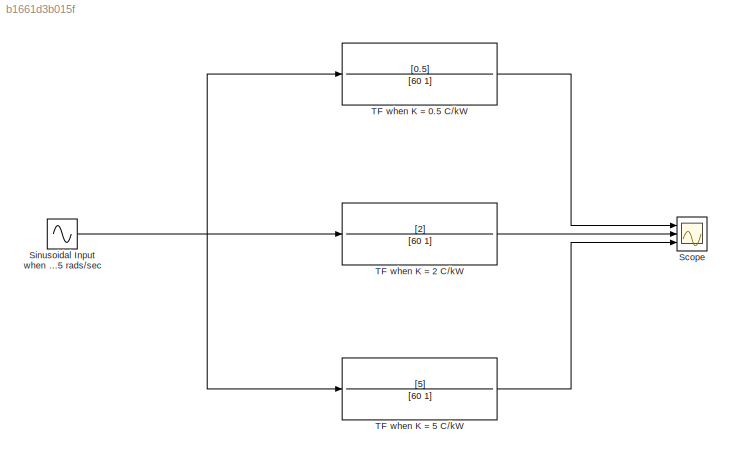
MODEL slx_b1661d3b015f
KIND model
CONFIG AbsTol = auto
CONFIG EnableMultiTasking = off
CONFIG FixedStep = auto
CONFIG MaxStep = auto
CONFIG MinStep = auto
CONFIG RelTol = 1e-3
CONFIG SampleTimeConstraint = Unconstrained
CONFIG SolverName = VariableStepAuto
CONFIG StartTime = 0.0
CONFIG StopTime = 25
BLOCK [Scope] Scope
  Floating = off
  NumInputPorts = 3
  Ports = [3]
  ScopeSpecificationString = Simulink.scopes.TimeScopeBlockCfg('CurrentConfiguration', extmgr.ConfigurationSet(extmgr.Configuration('Core','General UI',true),extmgr.Configuration('Core','Source UI',true),extmgr.Configuration('Sources','WiredSimulink',true),extmgr.Configuration('Visuals','Time Domain',true,'SerializedDisplays',{struct('MinYLimReal','-0.00612','MaxYLimReal','0.03332','YLabelReal','','MinYLimMag','0.00000','MaxY...<+1455ch>
BLOCK [Sin] Sinusoidal Input when A = 1 kW and f = 5 rads//sec
  Frequency = 5
  Ports = [0, 1]
  SampleTime = 0
BLOCK [TransferFcn] TF when K = 0.5 C//kW
  Denominator = [60 1]
  Numerator = [0.5]
BLOCK [TransferFcn] TF when K = 2 C//kW
  Denominator = [60 1]
  Numerator = [2]
BLOCK [TransferFcn] TF when K = 5 C//kW
  Denominator = [60 1]
  Numerator = [5]
NET Sinusoidal Input when A = 1 kW and f = 5 rads//sec:1 -> TF when K = 0.5 C//kW:1, TF when K = 2 C//kW:1, TF when K = 5 C//kW:1
LINE TF when K = 0.5 C//kW:1 -> Scope:1
LINE TF when K = 2 C//kW:1 -> Scope:2
LINE TF when K = 5 C//kW:1 -> Scope:3
note: NET lines group one-source signal fan-out (src -> all destinations, sorted); 1:1 wires keep LINE
